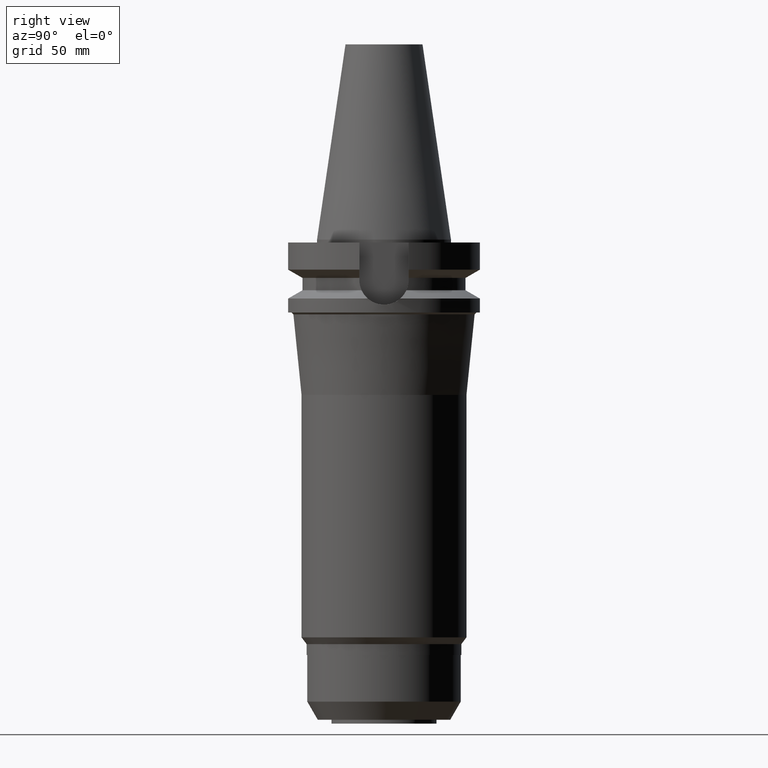
[diagram: clean part render]
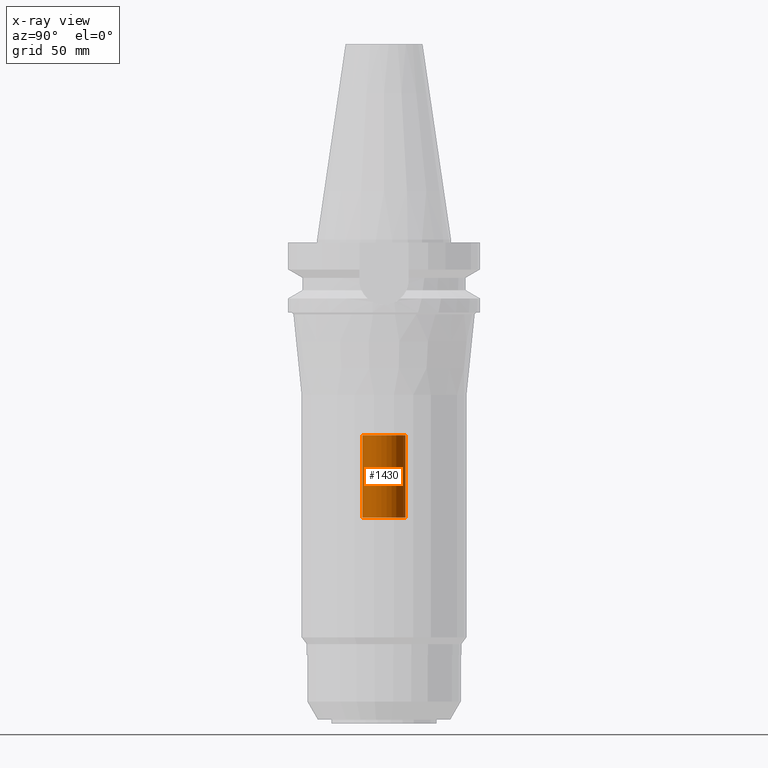
[diagram: x-ray — body ghosted, one internal face saturated and labeled with its STEP entity id]
A machine part, right view, then the same camera in x-ray: the body is ghosted and one INTERNAL B-rep face — a face not visible from any outside direction — is saturated and labeled: STEP entity #1430.
In plain terms, the highlighted cylindrical surface (edge-blend (fillet) strip) has radius 11.25 mm, axis along (0, 0, -1).
Its self-contained STEP definition (entity closure, byte-faithful):
#108=CARTESIAN_POINT('',(0.E0,2.688222188808E-14,-1.02E2));
#109=DIRECTION('',(0.E0,0.E0,1.E0));
#110=DIRECTION('',(0.E0,-1.E0,0.E0));
#111=AXIS2_PLACEMENT_3D('',#108,#109,#110);
#140=DIRECTION('',(0.E0,0.E0,1.E0));
#141=VECTOR('',#140,4.3E1);
#142=CARTESIAN_POINT('',(0.E0,1.125E1,-1.45E2));
#143=LINE('',#142,#141);
#147=DIRECTION('',(0.E0,0.E0,1.E0));
#148=VECTOR('',#147,4.3E1);
#149=CARTESIAN_POINT('',(0.E0,-1.125E1,-1.45E2));
#150=LINE('',#149,#148);
#178=CARTESIAN_POINT('',(0.E0,2.688222188808E-14,-1.45E2));
#179=DIRECTION('',(0.E0,0.E0,-1.E0));
#180=DIRECTION('',(0.E0,1.E0,0.E0));
#181=AXIS2_PLACEMENT_3D('',#178,#179,#180);
#1145=CARTESIAN_POINT('',(0.E0,-1.125E1,-1.02E2));
#1146=CARTESIAN_POINT('',(0.E0,1.125E1,-1.02E2));
#1147=VERTEX_POINT('',#1145);
#1148=VERTEX_POINT('',#1146);
#1149=CARTESIAN_POINT('',(0.E0,1.125E1,-1.45E2));
#1150=VERTEX_POINT('',#1149);
#1151=CARTESIAN_POINT('',(0.E0,-1.125E1,-1.45E2));
#1152=VERTEX_POINT('',#1151);
#1416=CARTESIAN_POINT('',(0.E0,2.688222188808E-14,1.1951E2));
#1417=DIRECTION('',(0.E0,0.E0,-1.E0));
#1418=DIRECTION('',(0.E0,-1.E0,0.E0));
#1419=AXIS2_PLACEMENT_3D('',#1416,#1417,#1418);
#1420=CYLINDRICAL_SURFACE('',#1419,1.125E1);
#1422=ORIENTED_EDGE('',*,*,#1421,.T.);
#1423=ORIENTED_EDGE('',*,*,#1405,.F.);
#1425=ORIENTED_EDGE('',*,*,#1424,.F.);
#1427=ORIENTED_EDGE('',*,*,#1426,.F.);
#1428=EDGE_LOOP('',(#1422,#1423,#1425,#1427));
#1429=FACE_OUTER_BOUND('',#1428,.F.);
#112=CIRCLE('',#111,1.125E1);
#182=CIRCLE('',#181,1.125E1);
#1405=EDGE_CURVE('',#1147,#1148,#112,.T.);
#1421=EDGE_CURVE('',#1150,#1148,#143,.T.);
#1424=EDGE_CURVE('',#1152,#1147,#150,.T.);
#1426=EDGE_CURVE('',#1150,#1152,#182,.T.);
#1430=ADVANCED_FACE('',(#1429),#1420,.F.);